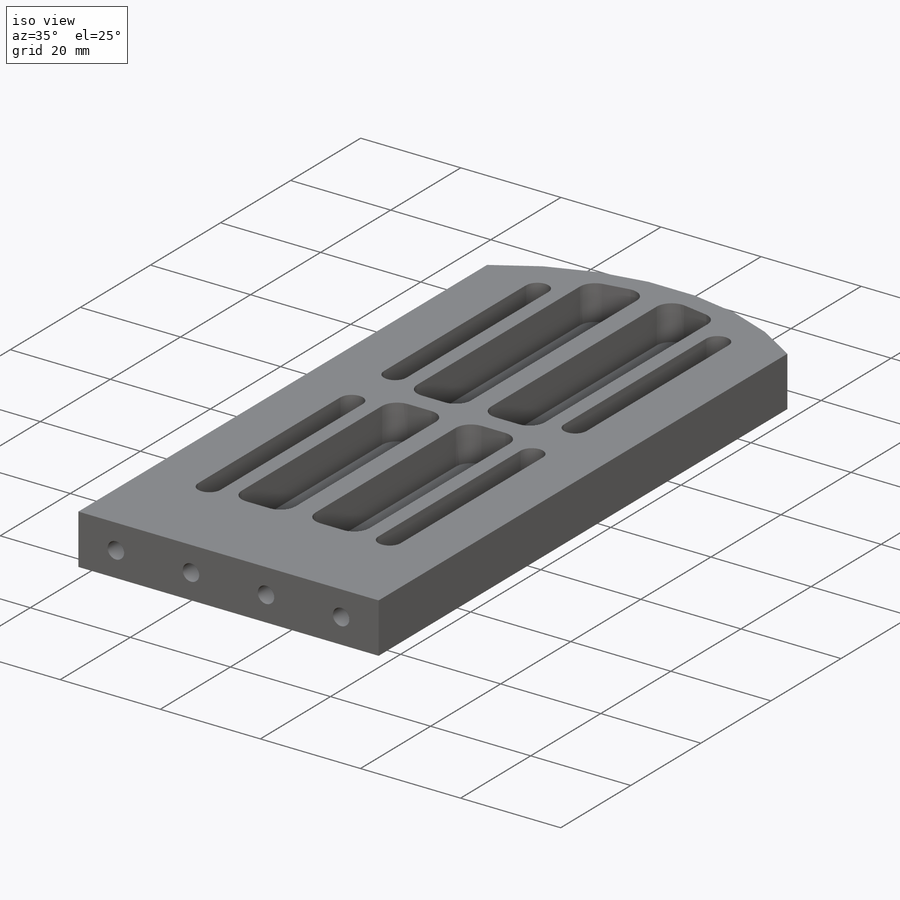
[diagram: iso view]
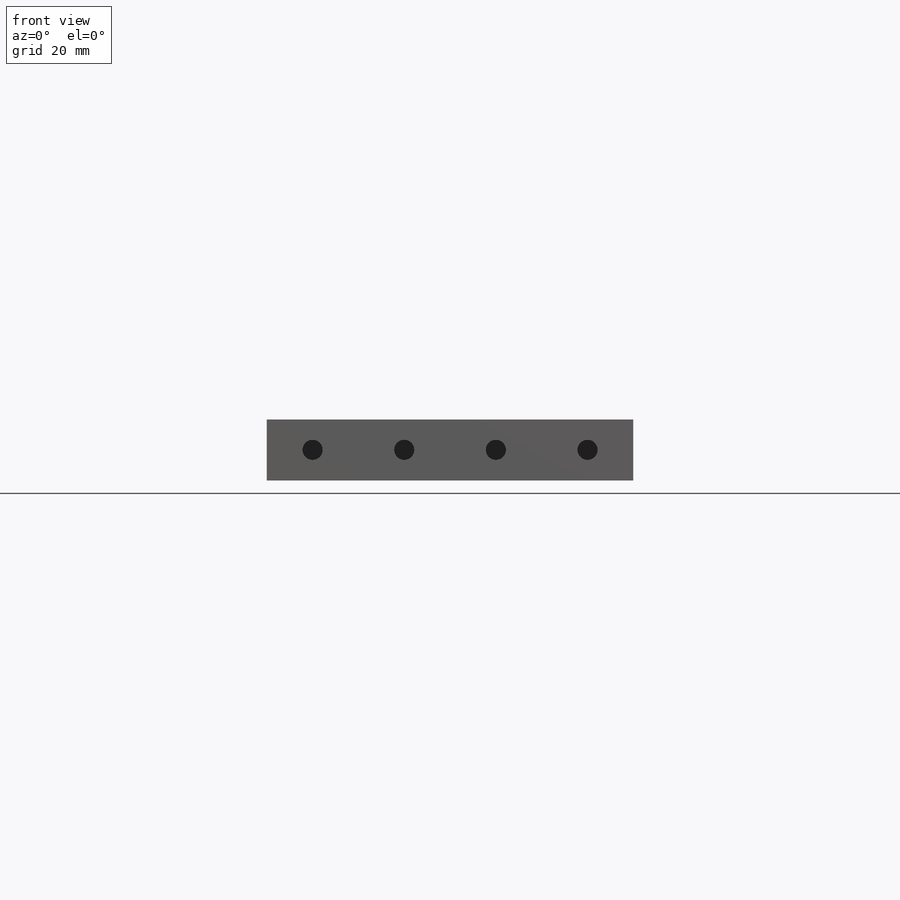
[diagram: front view]
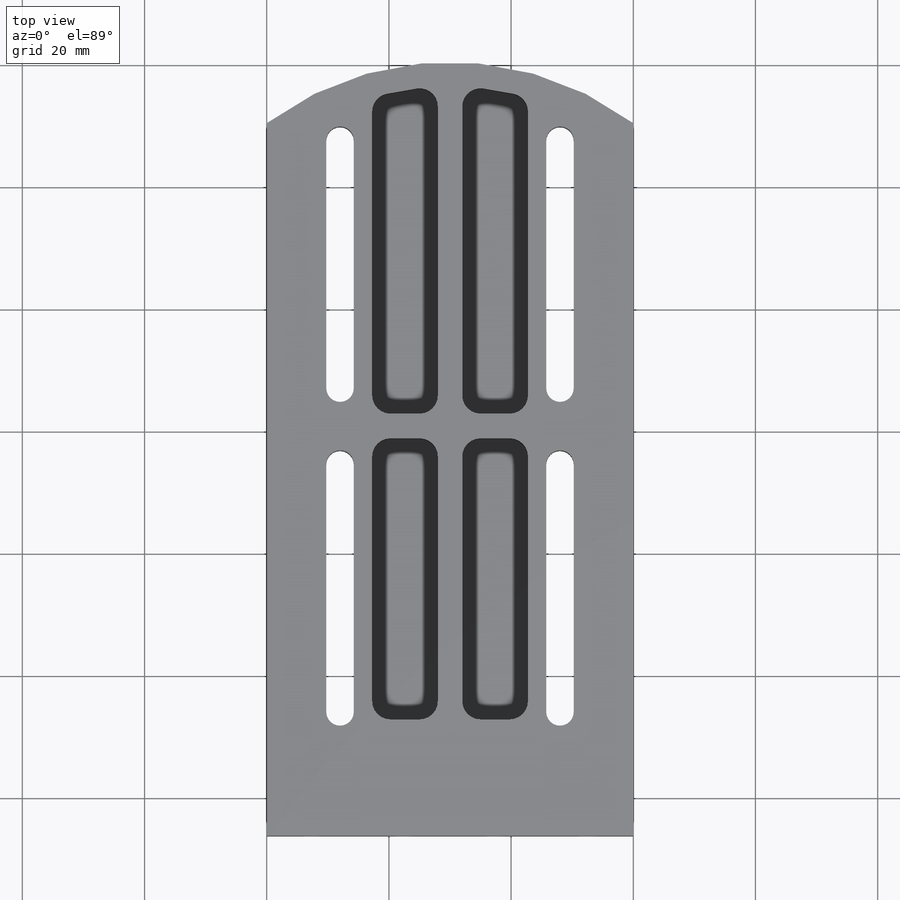
[diagram: top view]
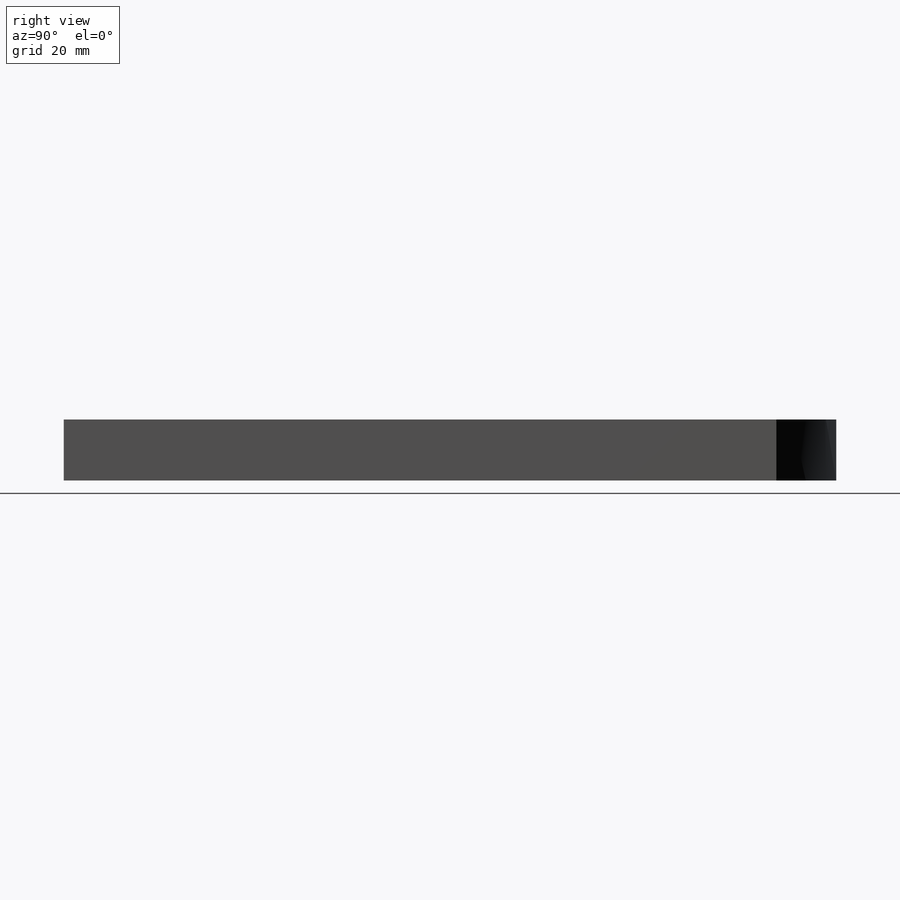
[diagram: right view]
SOLIDWORKS PART (.sldprt)
format: sldprt  version: not decoded by parser v0  size: 893,952 bytes
history: native  units: mm
features: sketch x7, thread x4, move_body x3, extrude x2, cut_extrude x2, material x1, fillet x1, hole x1, boolean_combine x1 + 4 further entries (+12 scaffold rows collapsed)
feature tree (38):
  scaffold x12  (default folders/planes/origin — collapsed)
  material  "3.1355 (EN-AW 2024)"
  "Таблица параметров"
  sketch  "Эскиз1"  dims[c1.D4=~4.344269mm c1.D7=50.0mm c1.D8=2.25mm c1.D1=45.6mm c1.D2=36.0mm c1.D3=4.5mm c2.D4=4.5mm c2.D5=45.6mm c2.D6=60.0mm c2.D8=44.0mm c2.D9=12.0mm c2.D10=41.34mm c2.D11=5.0mm c2.D12=4.5mm c2.D13=45.6mm c3.D8=44.0mm c3.D5=58.0mm]
  extrude  "Бобышка-Вытянуть1"  Depth=10mm
  sketch  "Эскиз2"  dims[D1=15.0mm D2=3.0mm D3=3.0mm D4=4.0mm]
  cut_extrude  "Вырез-Вытянуть1"  Depth=7mm
  sketch  "Эскиз3"  dims[D1=2.0mm]
  extrude  "Бобышка-Вытянуть2"  [1 undecoded]
  fillet  "Скругление1"  Radius=3mm
  sketch  "Эскиз4"  dims[D1=7.5mm D2=15.0mm D3=15.0mm D4=15.0mm]
  hole  "Отверстие обработанное метчиком M4x0.71"  [1 undecoded]
  sketch  "Эскиз8"
  sketch  "Эскиз7"  dims[hole-wizard template sketch: 60 standard entries collapsed; hole parameters kept: c18.Глубина проходного сверла=15.0mm]
  thread  "Отверстие резьбы1"  Diameter=4mm  [1 undecoded]
  thread  "Отверстие резьбы2"  Diameter=4mm  [1 undecoded]
  thread  "Отверстие резьбы3"  Diameter=4mm  [1 undecoded]
  thread  "Отверстие резьбы4"  Diameter=4mm  [1 undecoded]
  sketch  "Эскиз9"  dims[D1=10.0mm D2=10.0mm]
  cut_extrude  "Вырез-Вытянуть2"  Depth=10mm
  move_body  "Тело-Переместить/Копировать1"
  "Совпадение2"
  move_body  "Тело-Переместить/Копировать2"
  "Совпадение3"
  move_body  "Тело-Переместить/Копировать3"
  "Совпадение4"
  boolean_combine  "Соединить1"
decode coverage: 14 of 21 modeling features carry decoded parameters; 4 rows unclassified (native names shown)
note: ~ marks probable driven/reference dimensions
note: 6 parameter values undecoded
note: suppression state not decoded; provenance and decode notes live in map.json
